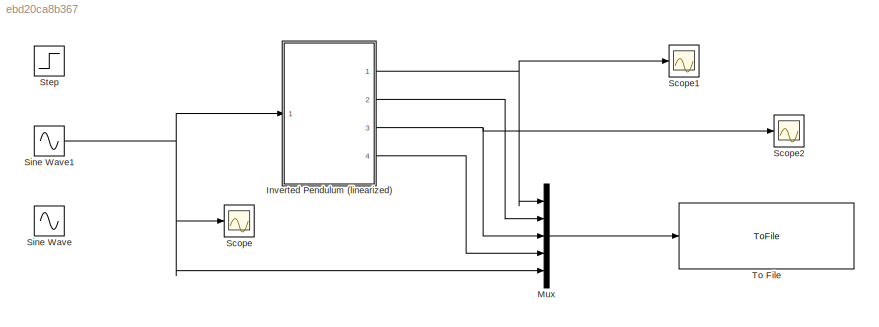
MODEL slx_ebd20ca8b367
KIND model
CONFIG AbsTol = auto
CONFIG EnableMultiTasking = off
CONFIG FixedStep = auto
CONFIG MaxStep = 0.001
CONFIG MinStep = auto
CONFIG RelTol = 1e-3
CONFIG SampleTimeConstraint = Unconstrained
CONFIG Solver = VariableStepAuto
CONFIG SolverName = VariableStepAuto
CONFIG StartTime = 0.0
CONFIG StopTime = 10
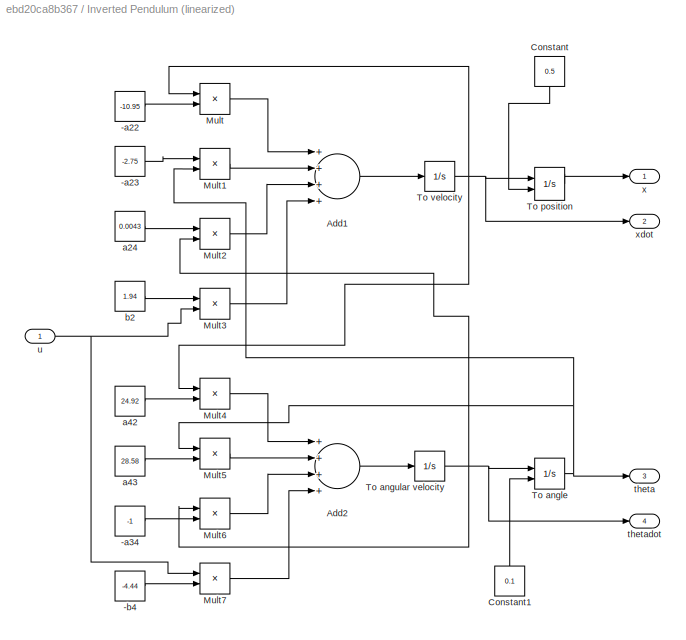
BLOCK [SubSystem] Inverted Pendulum (linearized)
  Ports = [1, 4]
  RequestExecContextInheritance = off
  Variant = off
BLOCK [Constant] Inverted Pendulum (linearized)/-a22
  Value = -10.95
BLOCK [Constant] Inverted Pendulum (linearized)/-a23
  Value = -2.75
BLOCK [Constant] Inverted Pendulum (linearized)/-a34
  Value = -1
BLOCK [Constant] Inverted Pendulum (linearized)/-b4
  Value = -4.44
BLOCK [Sum] Inverted Pendulum (linearized)/Add1
  InputSameDT = off
  Inputs = ++++
  OutDataTypeStr = Inherit: Inherit via internal rule
  Ports = [4, 1]
  SaturateOnIntegerOverflow = off
BLOCK [Sum] Inverted Pendulum (linearized)/Add2
  InputSameDT = off
  Inputs = ++++
  OutDataTypeStr = Inherit: Inherit via internal rule
  Ports = [4, 1]
  SaturateOnIntegerOverflow = off
BLOCK [Constant] Inverted Pendulum (linearized)/Constant
  Value = 0.5
BLOCK [Constant] Inverted Pendulum (linearized)/Constant1
  Value = 0.1
BLOCK [Product] Inverted Pendulum (linearized)/Mult
  InputSameDT = off
  Inputs = **
  OutDataTypeStr = Inherit: Inherit via internal rule
  Ports = [2, 1]
  RndMeth = Floor
  SaturateOnIntegerOverflow = off
BLOCK [Product] Inverted Pendulum (linearized)/Mult1
  InputSameDT = off
  Inputs = **
  OutDataTypeStr = Inherit: Inherit via internal rule
  Ports = [2, 1]
  RndMeth = Floor
  SaturateOnIntegerOverflow = off
BLOCK [Product] Inverted Pendulum (linearized)/Mult2
  InputSameDT = off
  Inputs = **
  OutDataTypeStr = Inherit: Inherit via internal rule
  Ports = [2, 1]
  RndMeth = Floor
  SaturateOnIntegerOverflow = off
BLOCK [Product] Inverted Pendulum (linearized)/Mult3
  InputSameDT = off
  Inputs = **
  OutDataTypeStr = Inherit: Inherit via internal rule
  Ports = [2, 1]
  RndMeth = Floor
  SaturateOnIntegerOverflow = off
BLOCK [Product] Inverted Pendulum (linearized)/Mult4
  InputSameDT = off
  Inputs = **
  OutDataTypeStr = Inherit: Inherit via internal rule
  Ports = [2, 1]
  RndMeth = Floor
  SaturateOnIntegerOverflow = off
BLOCK [Product] Inverted Pendulum (linearized)/Mult5
  InputSameDT = off
  Inputs = **
  OutDataTypeStr = Inherit: Inherit via internal rule
  Ports = [2, 1]
  RndMeth = Floor
  SaturateOnIntegerOverflow = off
BLOCK [Product] Inverted Pendulum (linearized)/Mult6
  InputSameDT = off
  Inputs = **
  OutDataTypeStr = Inherit: Inherit via internal rule
  Ports = [2, 1]
  RndMeth = Floor
  SaturateOnIntegerOverflow = off
BLOCK [Product] Inverted Pendulum (linearized)/Mult7
  InputSameDT = off
  Inputs = **
  OutDataTypeStr = Inherit: Inherit via internal rule
  Ports = [2, 1]
  RndMeth = Floor
  SaturateOnIntegerOverflow = off
BLOCK [Integrator] Inverted Pendulum (linearized)/To angle
  InitialCondition = 1.5
  InitialConditionSource = external
  Ports = [2, 1]
BLOCK [Integrator] Inverted Pendulum (linearized)/To angular velocity
  Ports = [1, 1]
BLOCK [Integrator] Inverted Pendulum (linearized)/To position
  InitialCondition = 1
  InitialConditionSource = external
  Ports = [2, 1]
BLOCK [Integrator] Inverted Pendulum (linearized)/To velocity
  Ports = [1, 1]
BLOCK [Constant] Inverted Pendulum (linearized)/a24
  Value = 0.0043
BLOCK [Constant] Inverted Pendulum (linearized)/a42
  Value = 24.92
BLOCK [Constant] Inverted Pendulum (linearized)/a43
  Value = 28.58
BLOCK [Constant] Inverted Pendulum (linearized)/b2
  Value = 1.94
BLOCK [Outport] Inverted Pendulum (linearized)/theta
  IconDisplay = Port number
  Port = 3
BLOCK [Outport] Inverted Pendulum (linearized)/thetadot
  IconDisplay = Port number
  Port = 4
BLOCK [Inport] Inverted Pendulum (linearized)/u
  IconDisplay = Port number
BLOCK [Outport] Inverted Pendulum (linearized)/x
  IconDisplay = Port number
BLOCK [Outport] Inverted Pendulum (linearized)/xdot
  IconDisplay = Port number
  Port = 2
BLOCK [Mux] Mux
  DisplayOption = bar
  Inputs = 5
  Ports = [5, 1]
BLOCK [Scope] Scope
  NumInputPorts = 1
  Ports = [1]
  ScopeSpecificationString = Simulink.scopes.TimeScopeBlockCfg('CurrentConfiguration', extmgr.ConfigurationSet(extmgr.Configuration('Core','General UI',true),extmgr.Configuration('Core','Source UI',true),extmgr.Configuration('Sources','WiredSimulink',true),extmgr.Configuration('Visuals','Time Domain',true,'SerializedDisplays',{struct('MinYLimReal','-1.25','MaxYLimReal','1.25','YLabelReal','','MinYLimMag','0.00000','MaxYLimMag...<+1360ch>
BLOCK [Scope] Scope1
  NumInputPorts = 1
  Ports = [1]
  ScopeSpecificationString = Simulink.scopes.TimeScopeBlockCfg('CurrentConfiguration', extmgr.ConfigurationSet(extmgr.Configuration('Core','General UI',true),extmgr.Configuration('Core','Source UI',true),extmgr.Configuration('Sources','WiredSimulink',true,'DataLoggingVariableName','ScopeData1'),extmgr.Configuration('Visuals','Time Domain',true,'SerializedDisplays',{struct('MinYLimReal','-49076167611524168.00000','MaxYLimReal'...<+1563ch>
BLOCK [Scope] Scope2
  NumInputPorts = 1
  Ports = [1]
  ScopeSpecificationString = Simulink.scopes.TimeScopeBlockCfg('CurrentConfiguration', extmgr.ConfigurationSet(extmgr.Configuration('Core','General UI',true),extmgr.Configuration('Core','Source UI',true),extmgr.Configuration('Sources','WiredSimulink',true,'DataLoggingVariableName','ScopeData2'),extmgr.Configuration('Visuals','Time Domain',true,'SerializedDisplays',{struct('MinYLimReal','-31802048934758674000.00000','MaxYLimRe...<+1587ch>
BLOCK [Sin] Sine Wave
  Amplitude = 1.4370
  Bias = -1.0524
  Ports = [0, 1]
  SampleTime = 0
BLOCK [Sin] Sine Wave1
  Amplitude = 0.01
  Ports = [0, 1]
BLOCK [Step] Step
  SampleTime = 0
  Time = 3
BLOCK [ToFile] To File
  Decimation = 2
  Filename = inv_openloop_sine.mat
  MatrixName = openloop
  Ports = [1]
  SampleTime = 0.001
LINE Inverted Pendulum (linearized)/-a22:1 -> Inverted Pendulum (linearized)/Mult:2
LINE Inverted Pendulum (linearized)/-a23:1 -> Inverted Pendulum (linearized)/Mult1:1
LINE Inverted Pendulum (linearized)/-a34:1 -> Inverted Pendulum (linearized)/Mult6:2
LINE Inverted Pendulum (linearized)/-b4:1 -> Inverted Pendulum (linearized)/Mult7:2
LINE Inverted Pendulum (linearized)/Add1:1 -> Inverted Pendulum (linearized)/To velocity:1
LINE Inverted Pendulum (linearized)/Add2:1 -> Inverted Pendulum (linearized)/To angular velocity:1
LINE Inverted Pendulum (linearized)/Constant1:1 -> Inverted Pendulum (linearized)/To angle:2
LINE Inverted Pendulum (linearized)/Constant:1 -> Inverted Pendulum (linearized)/To position:2
LINE Inverted Pendulum (linearized)/Mult1:1 -> Inverted Pendulum (linearized)/Add1:2
LINE Inverted Pendulum (linearized)/Mult2:1 -> Inverted Pendulum (linearized)/Add1:3
LINE Inverted Pendulum (linearized)/Mult3:1 -> Inverted Pendulum (linearized)/Add1:4
LINE Inverted Pendulum (linearized)/Mult4:1 -> Inverted Pendulum (linearized)/Add2:1
LINE Inverted Pendulum (linearized)/Mult5:1 -> Inverted Pendulum (linearized)/Add2:2
LINE Inverted Pendulum (linearized)/Mult6:1 -> Inverted Pendulum (linearized)/Add2:3
LINE Inverted Pendulum (linearized)/Mult7:1 -> Inverted Pendulum (linearized)/Add2:4
LINE Inverted Pendulum (linearized)/Mult:1 -> Inverted Pendulum (linearized)/Add1:1
NET Inverted Pendulum (linearized)/To angle:1 -> Inverted Pendulum (linearized)/Mult1:2, Inverted Pendulum (linearized)/Mult5:1, Inverted Pendulum (linearized)/theta:1
NET Inverted Pendulum (linearized)/To angular velocity:1 -> Inverted Pendulum (linearized)/Mult2:2, Inverted Pendulum (linearized)/Mult6:1, Inverted Pendulum (linearized)/To angle:1, Inverted Pendulum (linearized)/thetadot:1
LINE Inverted Pendulum (linearized)/To position:1 -> Inverted Pendulum (linearized)/x:1
NET Inverted Pendulum (linearized)/To velocity:1 -> Inverted Pendulum (linearized)/Mult4:1, Inverted Pendulum (linearized)/Mult:1, Inverted Pendulum (linearized)/To position:1, Inverted Pendulum (linearized)/xdot:1
LINE Inverted Pendulum (linearized)/a24:1 -> Inverted Pendulum (linearized)/Mult2:1
LINE Inverted Pendulum (linearized)/a42:1 -> Inverted Pendulum (linearized)/Mult4:2
LINE Inverted Pendulum (linearized)/a43:1 -> Inverted Pendulum (linearized)/Mult5:2
LINE Inverted Pendulum (linearized)/b2:1 -> Inverted Pendulum (linearized)/Mult3:1
NET Inverted Pendulum (linearized)/u:1 -> Inverted Pendulum (linearized)/Mult3:2, Inverted Pendulum (linearized)/Mult7:1
NET Inverted Pendulum (linearized):1 -> Mux:1, Scope1:1
LINE Inverted Pendulum (linearized):2 -> Mux:2
NET Inverted Pendulum (linearized):3 -> Mux:3, Scope2:1
LINE Inverted Pendulum (linearized):4 -> Mux:4
LINE Mux:1 -> To File:1
NET Sine Wave1:1 -> Inverted Pendulum (linearized):1, Mux:5, Scope:1
note: NET lines group one-source signal fan-out (src -> all destinations, sorted); 1:1 wires keep LINE
